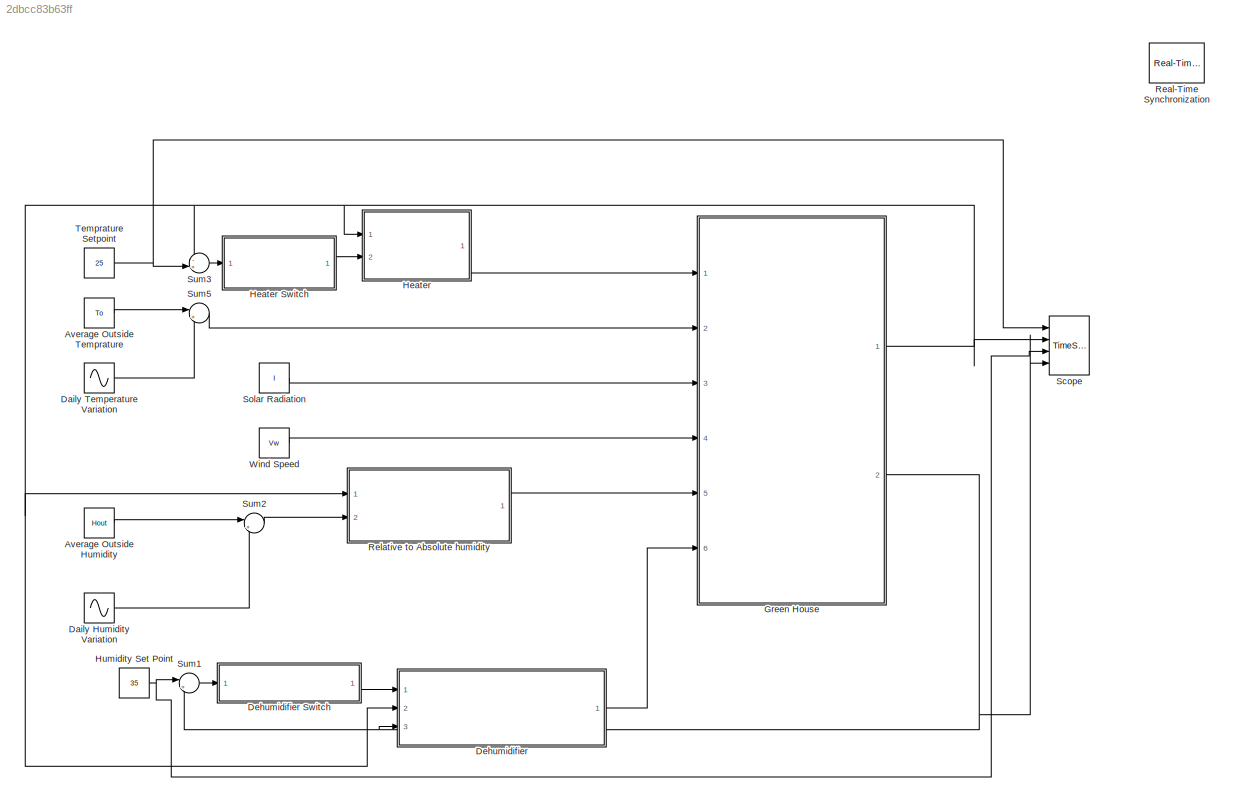
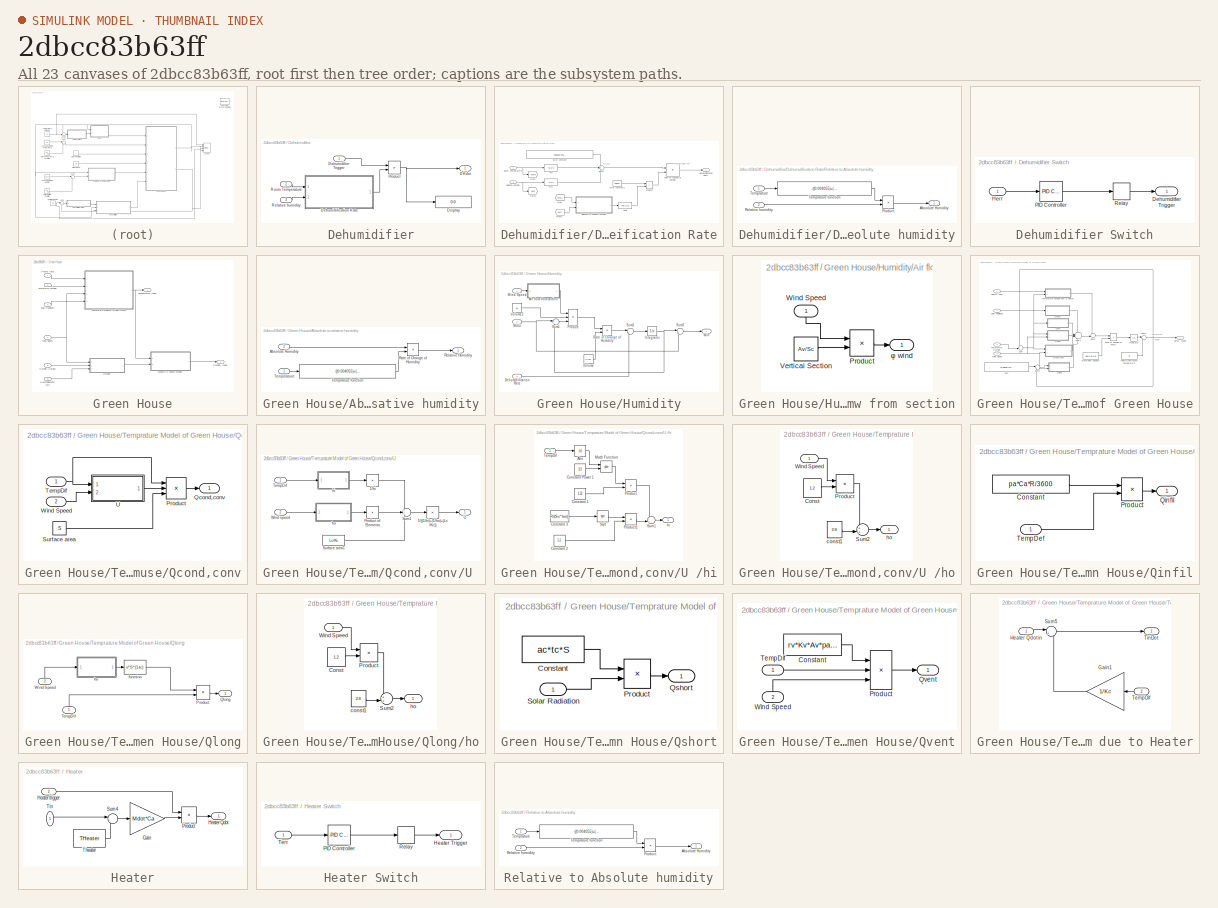
[diagram: thumbnail index - all 23 canvases of the model, root first then tree order]
MODEL slx_2dbcc83b63ff
KIND model
CONFIG AbsTol = auto
CONFIG FixedStep = auto
CONFIG MaxStep = auto
CONFIG MinStep = auto
CONFIG PreLoadFcn = %Density of interior air (Kg/m^3)\npa = 1.137;\n%Specific Heat of Air(J/Kg.K)\nCa = 1005;\n%Cover absorptivity of solar radiation\nac =0.1;\n%Cover transmittance \ntc = 0.85;\n%Length of GreenHouse(m)\nlen = 20;\n%Width of greenhouse(m)\nwid = 10;\n%Height of GreenHouse(m)[without Roof]\nheig = 3;\n%Roof angle from Horizontal(degrees)\nangle = 40;\n%Volume of greenhouse\nVol = len*wid*heig+0.5*wid*((width/2)*tan(a...<+263ch>
CONFIG RelTol = 1e-3
CONFIG SampleTimeConstraint = Unconstrained
CONFIG Solver = ode45
CONFIG SolverMode = Auto
CONFIG SolverName = ode45
CONFIG StartTime = 0.0
CONFIG StopTime = 10000
BLOCK [Constant] Average Outside Humidity
  Value = Hout
BLOCK [Constant] Average Outside Temprature 
  Value = To
BLOCK [Sin] Daily Humidity Variation
  Amplitude = 5
  Frequency = 0.005
  Phase = 1.5708
  Ports = [0, 1]
  SampleTime = 0
BLOCK [Sin] Daily Temperature Variation
  Amplitude = 5
  Ports = [0, 1]
  SampleTime = 0
BLOCK [SubSystem] Dehumidifier
  Ports = [3, 1]
  RequestExecContextInheritance = off
BLOCK [SubSystem] Dehumidifier Switch
  Ports = [1, 1]
  RequestExecContextInheritance = off
BLOCK [Outport] Dehumidifier Switch/Dehumidifier Trigger
  IconDisplay = Port number
BLOCK [Inport] Dehumidifier Switch/Herr
  IconDisplay = Port number
BLOCK [Reference] Dehumidifier Switch/PID Controller  REF=simulink/Continuous/PID Controller
  AntiWindupMode = none
  Controller = PID
  ControllerParametersSource = internal
  D = 1
  DGainOutDataTypeStr = Inherit: Inherit via internal rule
  DOutDataTypeStr = Inherit: Inherit via internal rule
  DOutMax = []
  DOutMin = []
  DParamDataTypeStr = Inherit: Inherit via internal rule
  DParamMax = []
  DParamMin = []
  DProdOutDataTypeStr = Inherit: Inherit via internal rule
  DifferentiatorICPrevScaledInput = 0
  DifferentiatorOutDataTypeStr = Inherit: Inherit via internal rule
  DifferentiatorOutMax = []
  DifferentiatorOutMin = []
  ExternalReset = none
  FilterContinuousStateAttributes = ''
  FilterMethod = Forward Euler
  FilterOutDataTypeStr = Inherit: Inherit via internal rule
  FilterOutMax = []
  FilterOutMin = []
  FilterRTWStateStorageClass = Auto
  FilterStateMustResolveToSignalObject = off
  Form = Parallel
  I = 10
  IGainOutDataTypeStr = Inherit: Inherit via internal rule
  IOutDataTypeStr = Inherit: Inherit via internal rule
  IOutMax = []
  IOutMin = []
  IParamDataTypeStr = Inherit: Inherit via internal rule
  IParamMax = []
  IParamMin = []
  IProdOutDataTypeStr = Inherit: Inherit via internal rule
  IgnoreLimit = off
  InitialConditionForFilter = 0
  InitialConditionForIntegrator = 0
  InitialConditionSource = internal
  IntegratorContinuousStateAttributes = ''
  IntegratorMethod = Forward Euler
  IntegratorOutDataTypeStr = Inherit: Inherit via internal rule
  IntegratorOutMax = []
  IntegratorOutMin = []
  IntegratorRTWStateStorageClass = Auto
  IntegratorStateMustResolveToSignalObject = off
  Kb = 1
  KbOutDataTypeStr = Inherit: Inherit via internal rule
  KbOutMax = []
  KbOutMin = []
  KbParamDataTypeStr = Inherit: Inherit via internal rule
  KbParamMax = []
  KbParamMin = []
  Kt = 1
  KtOutDataTypeStr = Inherit: Inherit via internal rule
  KtOutMax = []
  KtOutMin = []
  KtParamDataTypeStr = Inherit: Inherit via internal rule
  KtParamMax = []
  KtParamMin = []
  LimitOutput = off
  LinearizeAsGain = on
  LockScale = off
  LowerSaturationLimit = -inf
  N = 1
  NGainOutDataTypeStr = Inherit: Inherit via internal rule
  NOutDataTypeStr = Inherit: Inherit via internal rule
  NOutMax = []
  NOutMin = []
  NParamDataTypeStr = Inherit: Inherit via internal rule
  NParamMax = []
  NParamMin = []
  NProdOutDataTypeStr = Inherit: Inherit via internal rule
  P = 5000
  PGainOutDataTypeStr = Inherit: Inherit via internal rule
  POutDataTypeStr = Inherit: Inherit via internal rule
  POutMax = []
  POutMin = []
  PParamDataTypeStr = Inherit: Inherit via internal rule
  PParamMax = []
  PParamMin = []
  PProdOutDataTypeStr = Inherit: Inherit via internal rule
  Ports = [1, 1]
  RndMeth = Floor
  SampleTime = -1
  SaturateOnIntegerOverflow = off
  SaturationOutDataTypeStr = Inherit: Same as input
  SaturationOutMax = []
  SaturationOutMin = []
  SourceBlock = simulink/Continuous/PID Controller
  SourceType = PID 1dof
  SumAccumDataTypeStr = Inherit: Inherit via internal rule
  SumDAccumDataTypeStr = Inherit: Inherit via internal rule
  SumDOutDataTypeStr = Inherit: Inherit via internal rule
  SumDOutMax = []
  SumDOutMin = []
  SumI1AccumDataTypeStr = Inherit: Inherit via internal rule
  SumI1OutDataTypeStr = Inherit: Inherit via internal rule
  SumI1OutMax = []
  SumI1OutMin = []
  SumI2AccumDataTypeStr = Inherit: Inherit via internal rule
  SumI2OutDataTypeStr = Inherit: Inherit via internal rule
  SumI2OutMax = []
  SumI2OutMin = []
  SumI3AccumDataTypeStr = Inherit: Inherit via internal rule
  SumI3OutDataTypeStr = Inherit: Inherit via internal rule
  SumI3OutMax = []
  SumI3OutMin = []
  SumOutDataTypeStr = Inherit: Inherit via internal rule
  SumOutMax = []
  SumOutMin = []
  TimeDomain = Continuous-time
  TrackingMode = off
  UpperSaturationLimit = inf
  UseFilter = on
  ZeroCross = on
BLOCK [Relay] Dehumidifier Switch/Relay
  InputProcessing = Elements as channels (sample based)
  OffSwitchValue = 1
  OnSwitchValue = 1
  ZeroCross = off
BLOCK [Outport] Dehumidifier/DHdot
  IconDisplay = Port number
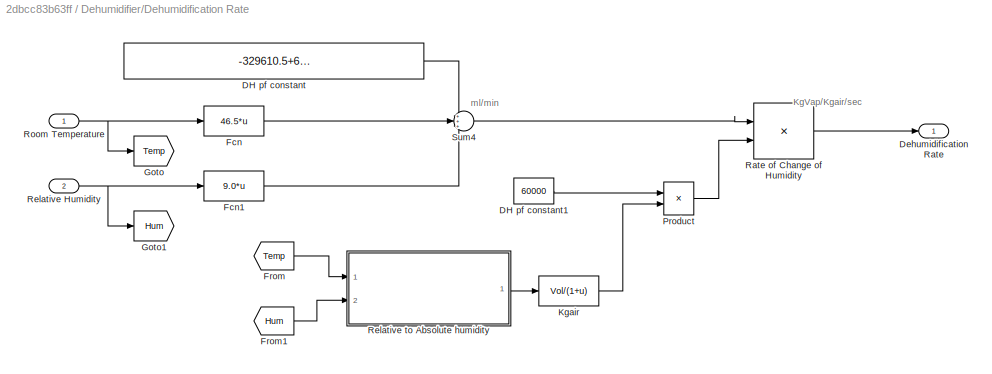
BLOCK [SubSystem] Dehumidifier/Dehumidification Rate
  Ports = [2, 1]
  RequestExecContextInheritance = off
BLOCK [Constant] Dehumidifier/Dehumidification Rate/DH pf constant
  Value = -329610.5+6.2*mairdot+31.7*Twi+325406.7*mwaterdot+0.3*I
BLOCK [Constant] Dehumidifier/Dehumidification Rate/DH pf constant1
  Value = 60000
BLOCK [Outport] Dehumidifier/Dehumidification Rate/Dehumidification Rate
  IconDisplay = Port number
BLOCK [Fcn] Dehumidifier/Dehumidification Rate/Fcn
  Expr = 46.5*u
BLOCK [Fcn] Dehumidifier/Dehumidification Rate/Fcn1
  Expr = 9.0*u
BLOCK [From] Dehumidifier/Dehumidification Rate/From
  GotoTag = Temp
BLOCK [From] Dehumidifier/Dehumidification Rate/From1
  GotoTag = Hum
BLOCK [Goto] Dehumidifier/Dehumidification Rate/Goto
  GotoTag = Temp
BLOCK [Goto] Dehumidifier/Dehumidification Rate/Goto1
  GotoTag = Hum
BLOCK [Fcn] Dehumidifier/Dehumidification Rate/Kgair
  Expr = Vol/(1+u)
BLOCK [Product] Dehumidifier/Dehumidification Rate/Product
  InputSameDT = off
  OutDataTypeStr = Inherit: Inherit via internal rule
  Ports = [2, 1]
  RndMeth = Floor
  SaturateOnIntegerOverflow = off
BLOCK [Product] Dehumidifier/Dehumidification Rate/Rate of Change of Humidity
  InputSameDT = off
  Inputs = */
  OutDataTypeStr = Inherit: Inherit via internal rule
  Ports = [2, 1]
  RndMeth = Floor
  SaturateOnIntegerOverflow = off
BLOCK [Inport] Dehumidifier/Dehumidification Rate/Relative Humidity
  IconDisplay = Port number
  Port = 2
BLOCK [SubSystem] Dehumidifier/Dehumidification Rate/Relative to Absolute humidity
  Ports = [2, 1]
  RequestExecContextInheritance = off
BLOCK [Outport] Dehumidifier/Dehumidification Rate/Relative to Absolute humidity/Absolute Humidity
  IconDisplay = Port number
BLOCK [Product] Dehumidifier/Dehumidification Rate/Relative to Absolute humidity/Product
  InputSameDT = off
  OutDataTypeStr = Inherit: Inherit via internal rule
  Ports = [2, 1]
  RndMeth = Floor
  SaturateOnIntegerOverflow = off
BLOCK [Inport] Dehumidifier/Dehumidification Rate/Relative to Absolute humidity/Relative humidity
  IconDisplay = Port number
  Port = 2
BLOCK [Inport] Dehumidifier/Dehumidification Rate/Relative to Absolute humidity/Temprature
  IconDisplay = Port number
BLOCK [Fcn] Dehumidifier/Dehumidification Rate/Relative to Absolute humidity/Temprature function
  Expr = ((0.004055)+(0.0001152*u)+0.00002167*u^2)/100
BLOCK [Inport] Dehumidifier/Dehumidification Rate/Room Temperature
  IconDisplay = Port number
BLOCK [Sum] Dehumidifier/Dehumidification Rate/Sum4
  IconShape = round
  InputSameDT = off
  Inputs = +++
  OutDataTypeStr = Inherit: Inherit via internal rule
  Ports = [3, 1]
  SaturateOnIntegerOverflow = off
BLOCK [Inport] Dehumidifier/Dehumidifier Trigger
  IconDisplay = Port number
BLOCK [Display] Dehumidifier/Display
  Decimation = 1
  Ports = [1]
BLOCK [Product] Dehumidifier/Product
  InputSameDT = off
  OutDataTypeStr = Inherit: Inherit via internal rule
  Ports = [2, 1]
  RndMeth = Floor
  SaturateOnIntegerOverflow = off
BLOCK [Inport] Dehumidifier/Relative humidity
  IconDisplay = Port number
  Port = 3
BLOCK [Inport] Dehumidifier/Room Temperature
  IconDisplay = Port number
  Port = 2
BLOCK [SubSystem] Green House
  Ports = [6, 2]
  RequestExecContextInheritance = off
BLOCK [SubSystem] Green House/Absolute to relative humidity
  Ports = [2, 1]
  RequestExecContextInheritance = off
BLOCK [Inport] Green House/Absolute to relative humidity/Absolute Humidity
  IconDisplay = Port number
  Port = 2
BLOCK [Product] Green House/Absolute to relative humidity/Rate of Change of Humidity
  InputSameDT = off
  Inputs = */
  OutDataTypeStr = Inherit: Inherit via internal rule
  Ports = [2, 1]
  RndMeth = Floor
  SaturateOnIntegerOverflow = off
BLOCK [Outport] Green House/Absolute to relative humidity/Relative Humidity
  IconDisplay = Port number
BLOCK [Inport] Green House/Absolute to relative humidity/Temperature
  IconDisplay = Port number
BLOCK [Fcn] Green House/Absolute to relative humidity/Temprature function
  Expr = ((0.004055)+(0.0001152*u)+0.00002167*u^2)/100
BLOCK [Inport] Green House/Dehumidification rate
  IconDisplay = Port number
  Port = 6
BLOCK [Inport] Green House/Heater Input
  IconDisplay = Port number
BLOCK [SubSystem] Green House/Humidity
  Ports = [3, 1]
  RequestExecContextInheritance = off
BLOCK [Outport] Green House/Humidity Inside
  IconDisplay = Port number
  Port = 2
BLOCK [Inport] Green House/Humidity Outside
  IconDisplay = Port number
  Port = 5
BLOCK [SubSystem] Green House/Humidity/Air flow from section
  Ports = [1, 1]
  RequestExecContextInheritance = off
BLOCK [Product] Green House/Humidity/Air flow from section/Product
  InputSameDT = off
  OutDataTypeStr = Inherit: Inherit via internal rule
  Ports = [2, 1]
  RndMeth = Floor
  SaturateOnIntegerOverflow = off
BLOCK [Constant] Green House/Humidity/Air flow from section/Vertical Section
  Value = Av/Sc
BLOCK [Inport] Green House/Humidity/Air flow from section/Wind Speed
  IconDisplay = Port number
BLOCK [Outport] Green House/Humidity/Air flow from section/φ wind
  IconDisplay = Port number
BLOCK [Inport] Green House/Humidity/Dehumidificarion Rate
  IconDisplay = Port number
  Port = 3
BLOCK [Integrator] Green House/Humidity/Integrator
  Ports = [1, 1]
BLOCK [Product] Green House/Humidity/Product
  InputSameDT = off
  Inputs = 3
  OutDataTypeStr = Inherit: Inherit via internal rule
  Ports = [3, 1]
  RndMeth = Floor
  SaturateOnIntegerOverflow = off
BLOCK [Product] Green House/Humidity/Rate of Change of Humidity
  InputSameDT = off
  Inputs = */
  OutDataTypeStr = Inherit: Inherit via internal rule
  Ports = [2, 1]
  RndMeth = Floor
  SaturateOnIntegerOverflow = off
BLOCK [Sum] Green House/Humidity/Sum1
  IconShape = round
  InputSameDT = off
  Inputs = |-+
  OutDataTypeStr = Inherit: Inherit via internal rule
  Ports = [2, 1]
  SaturateOnIntegerOverflow = off
BLOCK [Sum] Green House/Humidity/Sum2
  IconShape = round
  InputSameDT = off
  Inputs = |+-
  OutDataTypeStr = Inherit: Inherit via internal rule
  Ports = [2, 1]
  SaturateOnIntegerOverflow = off
BLOCK [Sum] Green House/Humidity/Sum3
  IconShape = round
  InputSameDT = off
  Inputs = |++
  OutDataTypeStr = Inherit: Inherit via internal rule
  Ports = [2, 1]
  SaturateOnIntegerOverflow = off
BLOCK [Constant] Green House/Humidity/Volume
  Value = H*pa
BLOCK [Constant] Green House/Humidity/Volume2
  Value = pa
BLOCK [Outport] Green House/Humidity/Win
  IconDisplay = Port number
BLOCK [Inport] Green House/Humidity/Wind Speed
  IconDisplay = Port number
BLOCK [Inport] Green House/Humidity/Wout
  IconDisplay = Port number
  Port = 2
BLOCK [Inport] Green House/Solar Radiation
  IconDisplay = Port number
  Port = 3
BLOCK [Outport] Green House/Temperature Inside
  IconDisplay = Signal name
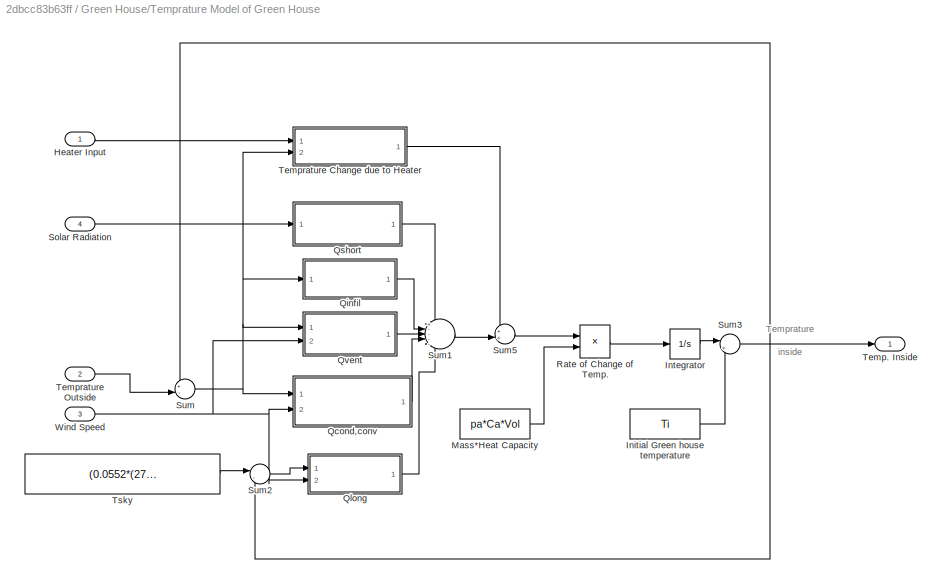
BLOCK [SubSystem] Green House/Temprature Model of Green House
  Ports = [4, 1]
  RequestExecContextInheritance = off
BLOCK [Inport] Green House/Temprature Model of Green House/Heater Input
  IconDisplay = Port number
BLOCK [Constant] Green House/Temprature Model of Green House/Initial Green house temperature
  Value = Ti
BLOCK [Integrator] Green House/Temprature Model of Green House/Integrator
  Ports = [1, 1]
BLOCK [Constant] Green House/Temprature Model of Green House/Mass*Heat Capacity
  Value = pa*Ca*Vol
BLOCK [SubSystem] Green House/Temprature Model of Green House/Qcond,conv
  Ports = [2, 1]
  RequestExecContextInheritance = off
BLOCK [Product] Green House/Temprature Model of Green House/Qcond,conv/Product
  InputSameDT = off
  Inputs = 3
  OutDataTypeStr = Inherit: Inherit via internal rule
  Ports = [3, 1]
  RndMeth = Floor
  SaturateOnIntegerOverflow = off
BLOCK [Outport] Green House/Temprature Model of Green House/Qcond,conv/Qcond,conv
  IconDisplay = Port number
BLOCK [Constant] Green House/Temprature Model of Green House/Qcond,conv/Surface area
  Value = S
BLOCK [Inport] Green House/Temprature Model of Green House/Qcond,conv/TempDif 
  IconDisplay = Port number
BLOCK [SubSystem] Green House/Temprature Model of Green House/Qcond,conv/U 
  Ports = [2, 1]
  RequestExecContextInheritance = off
BLOCK [Product] Green House/Temprature Model of Green House/Qcond,conv/U /1//((1//hi)+(1//ho)+(Lc//Kc))
  InputSameDT = off
  Inputs = /
  OutDataTypeStr = Inherit: Inherit via internal rule
  Ports = [1, 1]
  RndMeth = Floor
  SaturateOnIntegerOverflow = off
BLOCK [Product] Green House/Temprature Model of Green House/Qcond,conv/U /1//hi
  InputSameDT = off
  Inputs = /
  OutDataTypeStr = Inherit: Inherit via internal rule
  Ports = [1, 1]
  RndMeth = Floor
  SaturateOnIntegerOverflow = off
BLOCK [Product] Green House/Temprature Model of Green House/Qcond,conv/U /Product of Elements
  InputSameDT = off
  Inputs = /
  OutDataTypeStr = Inherit: Inherit via internal rule
  Ports = [1, 1]
  RndMeth = Floor
  SaturateOnIntegerOverflow = off
BLOCK [Sum] Green House/Temprature Model of Green House/Qcond,conv/U /Sum1
  IconShape = round
  InputSameDT = off
  Inputs = +++
  OutDataTypeStr = Inherit: Inherit via internal rule
  Ports = [3, 1]
  SaturateOnIntegerOverflow = off
BLOCK [Constant] Green House/Temprature Model of Green House/Qcond,conv/U /Surface area1
  Value = Lc/Kc
BLOCK [Inport] Green House/Temprature Model of Green House/Qcond,conv/U /TempDif 
  IconDisplay = Port number
BLOCK [Outport] Green House/Temprature Model of Green House/Qcond,conv/U /U 
  IconDisplay = Port number
BLOCK [Inport] Green House/Temprature Model of Green House/Qcond,conv/U /Wind speed
  IconDisplay = Port number
  Port = 2
BLOCK [SubSystem] Green House/Temprature Model of Green House/Qcond,conv/U /hi
  Ports = [1, 1]
  RequestExecContextInheritance = off
BLOCK [Abs] Green House/Temprature Model of Green House/Qcond,conv/U /hi/Abs
  SaturateOnIntegerOverflow = off
BLOCK [Constant] Green House/Temprature Model of Green House/Qcond,conv/U /hi/Constant 1
  Value = 1.52
BLOCK [Constant] Green House/Temprature Model of Green House/Qcond,conv/U /hi/Constant 2
  Value = 5.2
BLOCK [Constant] Green House/Temprature Model of Green House/Qcond,conv/U /hi/Constant 3
  Value = R/(Sc*len)
BLOCK [Constant] Green House/Temprature Model of Green House/Qcond,conv/U /hi/Constant Power 1
  Value = 1/3
BLOCK [Math] Green House/Temprature Model of Green House/Qcond,conv/U /hi/Math Function
  Operator = pow
  Ports = [2, 1]
BLOCK [Product] Green House/Temprature Model of Green House/Qcond,conv/U /hi/Product
  InputSameDT = off
  OutDataTypeStr = Inherit: Inherit via internal rule
  Ports = [2, 1]
  RndMeth = Floor
  SaturateOnIntegerOverflow = off
BLOCK [Product] Green House/Temprature Model of Green House/Qcond,conv/U /hi/Product1
  InputSameDT = off
  OutDataTypeStr = Inherit: Inherit via internal rule
  Ports = [2, 1]
  RndMeth = Floor
  SaturateOnIntegerOverflow = off
BLOCK [Sqrt] Green House/Temprature Model of Green House/Qcond,conv/U /hi/Sqrt
BLOCK [Sum] Green House/Temprature Model of Green House/Qcond,conv/U /hi/Sum1
  IconShape = round
  InputSameDT = off
  Inputs = ++|
  OutDataTypeStr = Inherit: Inherit via internal rule
  Ports = [2, 1]
  SaturateOnIntegerOverflow = off
BLOCK [Inport] Green House/Temprature Model of Green House/Qcond,conv/U /hi/TempDif 
  IconDisplay = Port number
BLOCK [Outport] Green House/Temprature Model of Green House/Qcond,conv/U /hi/hi 
  IconDisplay = Port number
BLOCK [SubSystem] Green House/Temprature Model of Green House/Qcond,conv/U /ho
  Ports = [1, 1]
  RequestExecContextInheritance = off
BLOCK [Constant] Green House/Temprature Model of Green House/Qcond,conv/U /ho/Const
  Value = 1.2
BLOCK [Product] Green House/Temprature Model of Green House/Qcond,conv/U /ho/Product
  InputSameDT = off
  OutDataTypeStr = Inherit: Inherit via internal rule
  Ports = [2, 1]
  RndMeth = Floor
  SaturateOnIntegerOverflow = off
BLOCK [Sum] Green House/Temprature Model of Green House/Qcond,conv/U /ho/Sum2
  IconShape = round
  InputSameDT = off
  Inputs = ++|
  OutDataTypeStr = Inherit: Inherit via internal rule
  Ports = [2, 1]
  SaturateOnIntegerOverflow = off
BLOCK [Inport] Green House/Temprature Model of Green House/Qcond,conv/U /ho/Wind Speed
  IconDisplay = Port number
BLOCK [Constant] Green House/Temprature Model of Green House/Qcond,conv/U /ho/const1
  Value = 2.8
BLOCK [Outport] Green House/Temprature Model of Green House/Qcond,conv/U /ho/ho
  IconDisplay = Port number
BLOCK [Inport] Green House/Temprature Model of Green House/Qcond,conv/Wind Speed
  IconDisplay = Port number
  Port = 2
BLOCK [SubSystem] Green House/Temprature Model of Green House/Qinfil
  Ports = [1, 1]
  RequestExecContextInheritance = off
BLOCK [Constant] Green House/Temprature Model of Green House/Qinfil/Constant 
  Value = pa*Ca*R/3600
BLOCK [Product] Green House/Temprature Model of Green House/Qinfil/Product
  InputSameDT = off
  OutDataTypeStr = Inherit: Inherit via internal rule
  Ports = [2, 1]
  RndMeth = Floor
  SaturateOnIntegerOverflow = off
BLOCK [Outport] Green House/Temprature Model of Green House/Qinfil/Qinfil 
  IconDisplay = Port number
BLOCK [Inport] Green House/Temprature Model of Green House/Qinfil/TempDef 
  IconDisplay = Port number
BLOCK [SubSystem] Green House/Temprature Model of Green House/Qlong
  Ports = [2, 1]
  RequestExecContextInheritance = off
BLOCK [Fcn] Green House/Temprature Model of Green House/Qlong/ function
  Expr = u*S*(1-tc)
BLOCK [Product] Green House/Temprature Model of Green House/Qlong/Product
  InputSameDT = off
  OutDataTypeStr = Inherit: Inherit via internal rule
  Ports = [2, 1]
  RndMeth = Floor
  SaturateOnIntegerOverflow = off
BLOCK [Outport] Green House/Temprature Model of Green House/Qlong/Qlong
  IconDisplay = Port number
BLOCK [Inport] Green House/Temprature Model of Green House/Qlong/TempDif
  IconDisplay = Port number
BLOCK [Inport] Green House/Temprature Model of Green House/Qlong/Wind Speed
  IconDisplay = Port number
  Port = 2
BLOCK [SubSystem] Green House/Temprature Model of Green House/Qlong/ho
  Ports = [1, 1]
  RequestExecContextInheritance = off
BLOCK [Constant] Green House/Temprature Model of Green House/Qlong/ho/Const
  Value = 1.2
BLOCK [Product] Green House/Temprature Model of Green House/Qlong/ho/Product
  InputSameDT = off
  OutDataTypeStr = Inherit: Inherit via internal rule
  Ports = [2, 1]
  RndMeth = Floor
  SaturateOnIntegerOverflow = off
BLOCK [Sum] Green House/Temprature Model of Green House/Qlong/ho/Sum2
  IconShape = round
  InputSameDT = off
  Inputs = ++|
  OutDataTypeStr = Inherit: Inherit via internal rule
  Ports = [2, 1]
  SaturateOnIntegerOverflow = off
BLOCK [Inport] Green House/Temprature Model of Green House/Qlong/ho/Wind Speed
  IconDisplay = Port number
BLOCK [Constant] Green House/Temprature Model of Green House/Qlong/ho/const1
  Value = 2.8
BLOCK [Outport] Green House/Temprature Model of Green House/Qlong/ho/ho
  IconDisplay = Port number
BLOCK [SubSystem] Green House/Temprature Model of Green House/Qshort
  Ports = [1, 1]
  RequestExecContextInheritance = off
BLOCK [Constant] Green House/Temprature Model of Green House/Qshort/Constant
  Value = ac*tc*S
BLOCK [Product] Green House/Temprature Model of Green House/Qshort/Product
  InputSameDT = off
  OutDataTypeStr = Inherit: Inherit via internal rule
  Ports = [2, 1]
  RndMeth = Floor
  SaturateOnIntegerOverflow = off
BLOCK [Outport] Green House/Temprature Model of Green House/Qshort/Qshort
  IconDisplay = Port number
BLOCK [Inport] Green House/Temprature Model of Green House/Qshort/Solar Radiation
  IconDisplay = Port number
BLOCK [SubSystem] Green House/Temprature Model of Green House/Qvent
  Ports = [2, 1]
  RequestExecContextInheritance = off
BLOCK [Constant] Green House/Temprature Model of Green House/Qvent/Constant
  Value = rv*Kv*Av*pa*Ca
BLOCK [Product] Green House/Temprature Model of Green House/Qvent/Product
  InputSameDT = off
  Inputs = 3
  OutDataTypeStr = Inherit: Inherit via internal rule
  Ports = [3, 1]
  RndMeth = Floor
  SaturateOnIntegerOverflow = off
BLOCK [Outport] Green House/Temprature Model of Green House/Qvent/Qvent
  IconDisplay = Port number
BLOCK [Inport] Green House/Temprature Model of Green House/Qvent/TempDif
  IconDisplay = Port number
BLOCK [Inport] Green House/Temprature Model of Green House/Qvent/Wind Speed
  IconDisplay = Port number
  Port = 2
BLOCK [Product] Green House/Temprature Model of Green House/Rate of Change of Temp.
  InputSameDT = off
  Inputs = */
  OutDataTypeStr = Inherit: Inherit via internal rule
  Ports = [2, 1]
  RndMeth = Floor
  SaturateOnIntegerOverflow = off
BLOCK [Inport] Green House/Temprature Model of Green House/Solar Radiation
  IconDisplay = Port number
  Port = 4
BLOCK [Sum] Green House/Temprature Model of Green House/Sum
  IconShape = round
  InputSameDT = off
  Inputs = +-|
  OutDataTypeStr = Inherit: Inherit via internal rule
  Ports = [2, 1]
  SaturateOnIntegerOverflow = off
BLOCK [Sum] Green House/Temprature Model of Green House/Sum1
  IconShape = round
  InputSameDT = off
  Inputs = +----
  OutDataTypeStr = Inherit: Inherit via internal rule
  Ports = [5, 1]
  SaturateOnIntegerOverflow = off
BLOCK [Sum] Green House/Temprature Model of Green House/Sum2
  IconShape = round
  InputSameDT = off
  Inputs = |-+
  OutDataTypeStr = Inherit: Inherit via internal rule
  Ports = [2, 1]
  SaturateOnIntegerOverflow = off
BLOCK [Sum] Green House/Temprature Model of Green House/Sum3
  IconShape = round
  InputSameDT = off
  Inputs = |++
  OutDataTypeStr = Inherit: Inherit via internal rule
  Ports = [2, 1]
  SaturateOnIntegerOverflow = off
BLOCK [Sum] Green House/Temprature Model of Green House/Sum5
  IconShape = round
  InputSameDT = off
  Inputs = ++|
  OutDataTypeStr = Inherit: Inherit via internal rule
  Ports = [2, 1]
  SaturateOnIntegerOverflow = off
BLOCK [Outport] Green House/Temprature Model of Green House/Temp. Inside
  IconDisplay = Port number
BLOCK [SubSystem] Green House/Temprature Model of Green House/Temprature Change due to Heater
  Ports = [2, 1]
  RequestExecContextInheritance = off
BLOCK [Gain] Green House/Temprature Model of Green House/Temprature Change due to Heater/Gain1
  Gain = 1/Kc
  OutDataTypeStr = Inherit: Inherit via internal rule
  ParamDataTypeStr = Inherit: Inherit via internal rule
  SaturateOnIntegerOverflow = off
BLOCK [Inport] Green House/Temprature Model of Green House/Temprature Change due to Heater/Heater Qdot in
  IconDisplay = Port number
BLOCK [Sum] Green House/Temprature Model of Green House/Temprature Change due to Heater/Sum5
  IconShape = round
  InputSameDT = off
  Inputs = |+-
  OutDataTypeStr = Inherit: Inherit via internal rule
  Ports = [2, 1]
  SaturateOnIntegerOverflow = off
BLOCK [Inport] Green House/Temprature Model of Green House/Temprature Change due to Heater/TempDif
  IconDisplay = Port number
  Port = 2
BLOCK [Outport] Green House/Temprature Model of Green House/Temprature Change due to Heater/TinDot
  IconDisplay = Port number
BLOCK [Inport] Green House/Temprature Model of Green House/Temprature Outside
  IconDisplay = Port number
  Port = 2
BLOCK [Constant] Green House/Temprature Model of Green House/Tsky
  Value = (0.0552*(273.15+To)^1.5)-273.15
BLOCK [Inport] Green House/Temprature Model of Green House/Wind Speed
  IconDisplay = Port number
  Port = 3
BLOCK [Inport] Green House/Temprature outside
  IconDisplay = Port number
  Port = 2
BLOCK [Inport] Green House/Wind Speed
  IconDisplay = Port number
  Port = 4
BLOCK [SubSystem] Heater
  Ports = [2, 1]
  RequestExecContextInheritance = off
BLOCK [SubSystem] Heater Switch
  Ports = [1, 1]
  RequestExecContextInheritance = off
BLOCK [Outport] Heater Switch/Heater Trigger
  IconDisplay = Port number
BLOCK [Reference] Heater Switch/PID Controller  REF=simulink/Continuous/PID Controller
  AntiWindupMode = none
  Controller = PID
  ControllerParametersSource = internal
  D = 1000
  DGainOutDataTypeStr = Inherit: Inherit via internal rule
  DOutDataTypeStr = Inherit: Inherit via internal rule
  DOutMax = []
  DOutMin = []
  DParamDataTypeStr = Inherit: Inherit via internal rule
  DParamMax = []
  DParamMin = []
  DProdOutDataTypeStr = Inherit: Inherit via internal rule
  DifferentiatorICPrevScaledInput = 0
  DifferentiatorOutDataTypeStr = Inherit: Inherit via internal rule
  DifferentiatorOutMax = []
  DifferentiatorOutMin = []
  ExternalReset = none
  FilterContinuousStateAttributes = ''
  FilterMethod = Forward Euler
  FilterOutDataTypeStr = Inherit: Inherit via internal rule
  FilterOutMax = []
  FilterOutMin = []
  FilterRTWStateStorageClass = Auto
  FilterStateMustResolveToSignalObject = off
  Form = Parallel
  I = 2
  IGainOutDataTypeStr = Inherit: Inherit via internal rule
  IOutDataTypeStr = Inherit: Inherit via internal rule
  IOutMax = []
  IOutMin = []
  IParamDataTypeStr = Inherit: Inherit via internal rule
  IParamMax = []
  IParamMin = []
  IProdOutDataTypeStr = Inherit: Inherit via internal rule
  IgnoreLimit = off
  InitialConditionForFilter = 0
  InitialConditionForIntegrator = 0
  InitialConditionSource = internal
  IntegratorContinuousStateAttributes = ''
  IntegratorMethod = Forward Euler
  IntegratorOutDataTypeStr = Inherit: Inherit via internal rule
  IntegratorOutMax = []
  IntegratorOutMin = []
  IntegratorRTWStateStorageClass = Auto
  IntegratorStateMustResolveToSignalObject = off
  Kb = 1
  KbOutDataTypeStr = Inherit: Inherit via internal rule
  KbOutMax = []
  KbOutMin = []
  KbParamDataTypeStr = Inherit: Inherit via internal rule
  KbParamMax = []
  KbParamMin = []
  Kt = 1
  KtOutDataTypeStr = Inherit: Inherit via internal rule
  KtOutMax = []
  KtOutMin = []
  KtParamDataTypeStr = Inherit: Inherit via internal rule
  KtParamMax = []
  KtParamMin = []
  LimitOutput = off
  LinearizeAsGain = on
  LockScale = off
  LowerSaturationLimit = -inf
  N = 1
  NGainOutDataTypeStr = Inherit: Inherit via internal rule
  NOutDataTypeStr = Inherit: Inherit via internal rule
  NOutMax = []
  NOutMin = []
  NParamDataTypeStr = Inherit: Inherit via internal rule
  NParamMax = []
  NParamMin = []
  NProdOutDataTypeStr = Inherit: Inherit via internal rule
  P = 20
  PGainOutDataTypeStr = Inherit: Inherit via internal rule
  POutDataTypeStr = Inherit: Inherit via internal rule
  POutMax = []
  POutMin = []
  PParamDataTypeStr = Inherit: Inherit via internal rule
  PParamMax = []
  PParamMin = []
  PProdOutDataTypeStr = Inherit: Inherit via internal rule
  Ports = [1, 1]
  RndMeth = Floor
  SampleTime = -1
  SaturateOnIntegerOverflow = off
  SaturationOutDataTypeStr = Inherit: Same as input
  SaturationOutMax = []
  SaturationOutMin = []
  SourceBlock = simulink/Continuous/PID Controller
  SourceType = PID 1dof
  SumAccumDataTypeStr = Inherit: Inherit via internal rule
  SumDAccumDataTypeStr = Inherit: Inherit via internal rule
  SumDOutDataTypeStr = Inherit: Inherit via internal rule
  SumDOutMax = []
  SumDOutMin = []
  SumI1AccumDataTypeStr = Inherit: Inherit via internal rule
  SumI1OutDataTypeStr = Inherit: Inherit via internal rule
  SumI1OutMax = []
  SumI1OutMin = []
  SumI2AccumDataTypeStr = Inherit: Inherit via internal rule
  SumI2OutDataTypeStr = Inherit: Inherit via internal rule
  SumI2OutMax = []
  SumI2OutMin = []
  SumI3AccumDataTypeStr = Inherit: Inherit via internal rule
  SumI3OutDataTypeStr = Inherit: Inherit via internal rule
  SumI3OutMax = []
  SumI3OutMin = []
  SumOutDataTypeStr = Inherit: Inherit via internal rule
  SumOutMax = []
  SumOutMin = []
  TimeDomain = Continuous-time
  TrackingMode = off
  UpperSaturationLimit = inf
  UseFilter = on
  ZeroCross = on
BLOCK [Relay] Heater Switch/Relay
  InputProcessing = Elements as channels (sample based)
  OffSwitchValue = -0.1
  OnSwitchValue = 0
  ZeroCross = off
BLOCK [Inport] Heater Switch/Terr
  IconDisplay = Port number
BLOCK [Gain] Heater/Gain
  Gain = Mdot*Ca
  OutDataTypeStr = Inherit: Inherit via internal rule
  ParamDataTypeStr = Inherit: Inherit via internal rule
  SaturateOnIntegerOverflow = off
BLOCK [Outport] Heater/Heater Qdot
  IconDisplay = Port number
BLOCK [Inport] Heater/Heater trigger
  IconDisplay = Port number
  Port = 2
BLOCK [Product] Heater/Product
  InputSameDT = off
  OutDataTypeStr = Inherit: Inherit via internal rule
  Ports = [2, 1]
  RndMeth = Floor
  SaturateOnIntegerOverflow = off
BLOCK [Sum] Heater/Sum4
  IconShape = round
  InputSameDT = off
  Inputs = |-+
  OutDataTypeStr = Inherit: Inherit via internal rule
  Ports = [2, 1]
  SaturateOnIntegerOverflow = off
BLOCK [Constant] Heater/Theater
  Value = THeater
BLOCK [Inport] Heater/Tin
  IconDisplay = Port number
BLOCK [Constant] Humidity Set Point
  Value = 35
BLOCK [Reference] Real-Time Synchronization  REF=sldrtlib/Real-Time
Synchronization
  MaxMissedTicks = 10
  Ports = []
  SampleTime = 0.01
  ShowMissedTicks = off
  SourceBlock = sldrtlib/Real-Time\nSynchronization
  SourceType = Simulink Desktop Real-Time Synchronization
  YieldWhenWaiting = off
BLOCK [SubSystem] Relative to Absolute humidity
  Ports = [2, 1]
  RequestExecContextInheritance = off
BLOCK [Outport] Relative to Absolute humidity/Absolute Humidity
  IconDisplay = Port number
BLOCK [Product] Relative to Absolute humidity/Product
  InputSameDT = off
  OutDataTypeStr = Inherit: Inherit via internal rule
  Ports = [2, 1]
  RndMeth = Floor
  SaturateOnIntegerOverflow = off
BLOCK [Inport] Relative to Absolute humidity/Relative humidity
  IconDisplay = Port number
  Port = 2
BLOCK [Inport] Relative to Absolute humidity/Temprature
  IconDisplay = Port number
BLOCK [Fcn] Relative to Absolute humidity/Temprature function
  Expr = ((0.004055)+(0.0001152*u)+0.00002167*u^2)/100
BLOCK [TimeScope] Scope
  NumInputPorts = 4
  Ports = [4]
  ScopeSpecificationString = Simulink.scopes.TimeScopeBlockCfg('CurrentConfiguration', extmgr.ConfigurationSet(extmgr.Configuration('Core','General UI',true),extmgr.Configuration('Core','Source UI',true),extmgr.Configuration('Sources','WiredSimulink',true,'DataLoggingDecimation','1','DataLoggingDecimateData',true,'DataLoggingSaveFormat','Array'),extmgr.Configuration('Visuals','Time Domain',true,'SerializedDisplays',{struct('M...<+1719ch>
BLOCK [Constant] Solar Radiation
  Value = I
BLOCK [Sum] Sum1
  IconShape = round
  InputSameDT = off
  Inputs = |+-
  OutDataTypeStr = Inherit: Inherit via internal rule
  Ports = [2, 1]
  SaturateOnIntegerOverflow = off
BLOCK [Sum] Sum2
  IconShape = round
  InputSameDT = off
  Inputs = |++
  OutDataTypeStr = Inherit: Inherit via internal rule
  Ports = [2, 1]
  SaturateOnIntegerOverflow = off
BLOCK [Sum] Sum3
  IconShape = round
  InputSameDT = off
  Inputs = -+|
  OutDataTypeStr = Inherit: Inherit via internal rule
  Ports = [2, 1]
  SaturateOnIntegerOverflow = off
BLOCK [Sum] Sum5
  IconShape = round
  InputSameDT = off
  Inputs = |++
  OutDataTypeStr = Inherit: Inherit via internal rule
  Ports = [2, 1]
  SaturateOnIntegerOverflow = off
BLOCK [Constant] Temprature Setpoint
  Value = 25
BLOCK [Constant] Wind Speed
  Value = Vw
ANNOTATION Dehumidifier/Dehumidification Rate: ml/min
ANNOTATION Dehumidifier/Dehumidification Rate: KgVap/Kgair/sec
ANNOTATION Green House/Temprature Model of Green House: Temprature inside
LINE Average Outside Humidity:1 -> Sum2:1
LINE Average Outside Temprature :1 -> Sum5:1
LINE Daily Humidity Variation:1 -> Sum2:2
LINE Daily Temperature Variation:1 -> Sum5:2
LINE Dehumidifier Switch/Herr:1 -> Dehumidifier Switch/PID Controller:1
LINE Dehumidifier Switch/PID Controller:1 -> Dehumidifier Switch/Relay:1
LINE Dehumidifier Switch/Relay:1 -> Dehumidifier Switch/Dehumidifier Trigger:1
LINE Dehumidifier Switch:1 -> Dehumidifier:1
LINE Dehumidifier/Dehumidification Rate/DH pf constant1:1 -> Dehumidifier/Dehumidification Rate/Product:1
LINE Dehumidifier/Dehumidification Rate/DH pf constant:1 -> Dehumidifier/Dehumidification Rate/Sum4:1
LINE Dehumidifier/Dehumidification Rate/Fcn1:1 -> Dehumidifier/Dehumidification Rate/Sum4:3
LINE Dehumidifier/Dehumidification Rate/Fcn:1 -> Dehumidifier/Dehumidification Rate/Sum4:2
LINE Dehumidifier/Dehumidification Rate/From1:1 -> Dehumidifier/Dehumidification Rate/Relative to Absolute humidity:2
LINE Dehumidifier/Dehumidification Rate/From:1 -> Dehumidifier/Dehumidification Rate/Relative to Absolute humidity:1
LINE Dehumidifier/Dehumidification Rate/Kgair:1 -> Dehumidifier/Dehumidification Rate/Product:2
LINE Dehumidifier/Dehumidification Rate/Product:1 -> Dehumidifier/Dehumidification Rate/Rate of Change of Humidity:2
LINE Dehumidifier/Dehumidification Rate/Rate of Change of Humidity:1 -> Dehumidifier/Dehumidification Rate/Dehumidification Rate:1
NET Dehumidifier/Dehumidification Rate/Relative Humidity:1 -> Dehumidifier/Dehumidification Rate/Fcn1:1, Dehumidifier/Dehumidification Rate/Goto1:1
LINE Dehumidifier/Dehumidification Rate/Relative to Absolute humidity/Product:1 -> Dehumidifier/Dehumidification Rate/Relative to Absolute humidity/Absolute Humidity:1
LINE Dehumidifier/Dehumidification Rate/Relative to Absolute humidity/Relative humidity:1 -> Dehumidifier/Dehumidification Rate/Relative to Absolute humidity/Product:2
LINE Dehumidifier/Dehumidification Rate/Relative to Absolute humidity/Temprature function:1 -> Dehumidifier/Dehumidification Rate/Relative to Absolute humidity/Product:1
LINE Dehumidifier/Dehumidification Rate/Relative to Absolute humidity/Temprature:1 -> Dehumidifier/Dehumidification Rate/Relative to Absolute humidity/Temprature function:1
LINE Dehumidifier/Dehumidification Rate/Relative to Absolute humidity:1 -> Dehumidifier/Dehumidification Rate/Kgair:1
NET Dehumidifier/Dehumidification Rate/Room Temperature:1 -> Dehumidifier/Dehumidification Rate/Fcn:1, Dehumidifier/Dehumidification Rate/Goto:1
LINE Dehumidifier/Dehumidification Rate/Sum4:1 -> Dehumidifier/Dehumidification Rate/Rate of Change of Humidity:1
LINE Dehumidifier/Dehumidification Rate:1 -> Dehumidifier/Product:2
LINE Dehumidifier/Dehumidifier Trigger:1 -> Dehumidifier/Product:1
NET Dehumidifier/Product:1 -> Dehumidifier/DHdot:1, Dehumidifier/Display:1
LINE Dehumidifier/Relative humidity:1 -> Dehumidifier/Dehumidification Rate:2
LINE Dehumidifier/Room Temperature:1 -> Dehumidifier/Dehumidification Rate:1
LINE Dehumidifier:1 -> Green House:6
LINE Green House/Absolute to relative humidity/Absolute Humidity:1 -> Green House/Absolute to relative humidity/Rate of Change of Humidity:1
LINE Green House/Absolute to relative humidity/Rate of Change of Humidity:1 -> Green House/Absolute to relative humidity/Relative Humidity:1
LINE Green House/Absolute to relative humidity/Temperature:1 -> Green House/Absolute to relative humidity/Temprature function:1
LINE Green House/Absolute to relative humidity/Temprature function:1 -> Green House/Absolute to relative humidity/Rate of Change of Humidity:2
LINE Green House/Absolute to relative humidity:1 -> Green House/Humidity Inside:1
LINE Green House/Dehumidification rate:1 -> Green House/Humidity:3
LINE Green House/Heater Input:1 -> Green House/Temprature Model of Green House:1
LINE Green House/Humidity Outside:1 -> Green House/Humidity:2
LINE Green House/Humidity/Air flow from section/Product:1 -> Green House/Humidity/Air flow from section/φ wind:1
LINE Green House/Humidity/Air flow from section/Vertical Section:1 -> Green House/Humidity/Air flow from section/Product:2
LINE Green House/Humidity/Air flow from section/Wind Speed:1 -> Green House/Humidity/Air flow from section/Product:1
LINE Green House/Humidity/Air flow from section:1 -> Green House/Humidity/Product:1
LINE Green House/Humidity/Dehumidificarion Rate:1 -> Green House/Humidity/Sum2:2
NET Green House/Humidity/Integrator:1 -> Green House/Humidity/Sum1:2, Green House/Humidity/Sum3:1
LINE Green House/Humidity/Product:1 -> Green House/Humidity/Rate of Change of Humidity:1
LINE Green House/Humidity/Rate of Change of Humidity:1 -> Green House/Humidity/Sum2:1
LINE Green House/Humidity/Sum1:1 -> Green House/Humidity/Product:3
LINE Green House/Humidity/Sum2:1 -> Green House/Humidity/Integrator:1
LINE Green House/Humidity/Sum3:1 -> Green House/Humidity/Win:1
LINE Green House/Humidity/Volume2:1 -> Green House/Humidity/Product:2
LINE Green House/Humidity/Volume:1 -> Green House/Humidity/Rate of Change of Humidity:2
LINE Green House/Humidity/Wind Speed:1 -> Green House/Humidity/Air flow from section:1
NET Green House/Humidity/Wout:1 -> Green House/Humidity/Sum1:1, Green House/Humidity/Sum3:2
LINE Green House/Humidity:1 -> Green House/Absolute to relative humidity:2
LINE Green House/Solar Radiation:1 -> Green House/Temprature Model of Green House:4
LINE Green House/Temprature Model of Green House/Heater Input:1 -> Green House/Temprature Model of Green House/Temprature Change due to Heater:1
LINE Green House/Temprature Model of Green House/Initial Green house temperature:1 -> Green House/Temprature Model of Green House/Sum3:2
LINE Green House/Temprature Model of Green House/Integrator:1 -> Green House/Temprature Model of Green House/Sum3:1
LINE Green House/Temprature Model of Green House/Mass*Heat Capacity:1 -> Green House/Temprature Model of Green House/Rate of Change of Temp.:2
LINE Green House/Temprature Model of Green House/Qcond,conv/Product:1 -> Green House/Temprature Model of Green House/Qcond,conv/Qcond,conv:1
LINE Green House/Temprature Model of Green House/Qcond,conv/Surface area:1 -> Green House/Temprature Model of Green House/Qcond,conv/Product:3
NET Green House/Temprature Model of Green House/Qcond,conv/TempDif :1 -> Green House/Temprature Model of Green House/Qcond,conv/Product:1, Green House/Temprature Model of Green House/Qcond,conv/U :1
LINE Green House/Temprature Model of Green House/Qcond,conv/U /1//((1//hi)+(1//ho)+(Lc//Kc)):1 -> Green House/Temprature Model of Green House/Qcond,conv/U /U :1
LINE Green House/Temprature Model of Green House/Qcond,conv/U /1//hi:1 -> Green House/Temprature Model of Green House/Qcond,conv/U /Sum1:1
LINE Green House/Temprature Model of Green House/Qcond,conv/U /Product of Elements:1 -> Green House/Temprature Model of Green House/Qcond,conv/U /Sum1:2
LINE Green House/Temprature Model of Green House/Qcond,conv/U /Sum1:1 -> Green House/Temprature Model of Green House/Qcond,conv/U /1//((1//hi)+(1//ho)+(Lc//Kc)):1
LINE Green House/Temprature Model of Green House/Qcond,conv/U /Surface area1:1 -> Green House/Temprature Model of Green House/Qcond,conv/U /Sum1:3
LINE Green House/Temprature Model of Green House/Qcond,conv/U /TempDif :1 -> Green House/Temprature Model of Green House/Qcond,conv/U /hi:1
LINE Green House/Temprature Model of Green House/Qcond,conv/U /Wind speed:1 -> Green House/Temprature Model of Green House/Qcond,conv/U /ho:1
LINE Green House/Temprature Model of Green House/Qcond,conv/U /hi/Abs:1 -> Green House/Temprature Model of Green House/Qcond,conv/U /hi/Math Function:1
LINE Green House/Temprature Model of Green House/Qcond,conv/U /hi/Constant 1:1 -> Green House/Temprature Model of Green House/Qcond,conv/U /hi/Product:2
LINE Green House/Temprature Model of Green House/Qcond,conv/U /hi/Constant 2:1 -> Green House/Temprature Model of Green House/Qcond,conv/U /hi/Product1:2
LINE Green House/Temprature Model of Green House/Qcond,conv/U /hi/Constant 3:1 -> Green House/Temprature Model of Green House/Qcond,conv/U /hi/Sqrt:1
LINE Green House/Temprature Model of Green House/Qcond,conv/U /hi/Constant Power 1:1 -> Green House/Temprature Model of Green House/Qcond,conv/U /hi/Math Function:2
LINE Green House/Temprature Model of Green House/Qcond,conv/U /hi/Math Function:1 -> Green House/Temprature Model of Green House/Qcond,conv/U /hi/Product:1
LINE Green House/Temprature Model of Green House/Qcond,conv/U /hi/Product1:1 -> Green House/Temprature Model of Green House/Qcond,conv/U /hi/Sum1:2
LINE Green House/Temprature Model of Green House/Qcond,conv/U /hi/Product:1 -> Green House/Temprature Model of Green House/Qcond,conv/U /hi/Sum1:1
LINE Green House/Temprature Model of Green House/Qcond,conv/U /hi/Sqrt:1 -> Green House/Temprature Model of Green House/Qcond,conv/U /hi/Product1:1
LINE Green House/Temprature Model of Green House/Qcond,conv/U /hi/Sum1:1 -> Green House/Temprature Model of Green House/Qcond,conv/U /hi/hi :1
LINE Green House/Temprature Model of Green House/Qcond,conv/U /hi/TempDif :1 -> Green House/Temprature Model of Green House/Qcond,conv/U /hi/Abs:1
LINE Green House/Temprature Model of Green House/Qcond,conv/U /hi:1 -> Green House/Temprature Model of Green House/Qcond,conv/U /1//hi:1
LINE Green House/Temprature Model of Green House/Qcond,conv/U /ho/Const:1 -> Green House/Temprature Model of Green House/Qcond,conv/U /ho/Product:2
LINE Green House/Temprature Model of Green House/Qcond,conv/U /ho/Product:1 -> Green House/Temprature Model of Green House/Qcond,conv/U /ho/Sum2:1
LINE Green House/Temprature Model of Green House/Qcond,conv/U /ho/Sum2:1 -> Green House/Temprature Model of Green House/Qcond,conv/U /ho/ho:1
LINE Green House/Temprature Model of Green House/Qcond,conv/U /ho/Wind Speed:1 -> Green House/Temprature Model of Green House/Qcond,conv/U /ho/Product:1
LINE Green House/Temprature Model of Green House/Qcond,conv/U /ho/const1:1 -> Green House/Temprature Model of Green House/Qcond,conv/U /ho/Sum2:2
LINE Green House/Temprature Model of Green House/Qcond,conv/U /ho:1 -> Green House/Temprature Model of Green House/Qcond,conv/U /Product of Elements:1
LINE Green House/Temprature Model of Green House/Qcond,conv/U :1 -> Green House/Temprature Model of Green House/Qcond,conv/Product:2
LINE Green House/Temprature Model of Green House/Qcond,conv/Wind Speed:1 -> Green House/Temprature Model of Green House/Qcond,conv/U :2
LINE Green House/Temprature Model of Green House/Qcond,conv:1 -> Green House/Temprature Model of Green House/Sum1:4
LINE Green House/Temprature Model of Green House/Qinfil/Constant :1 -> Green House/Temprature Model of Green House/Qinfil/Product:1
LINE Green House/Temprature Model of Green House/Qinfil/Product:1 -> Green House/Temprature Model of Green House/Qinfil/Qinfil :1
LINE Green House/Temprature Model of Green House/Qinfil/TempDef :1 -> Green House/Temprature Model of Green House/Qinfil/Product:2
LINE Green House/Temprature Model of Green House/Qinfil:1 -> Green House/Temprature Model of Green House/Sum1:2
LINE Green House/Temprature Model of Green House/Qlong/ function:1 -> Green House/Temprature Model of Green House/Qlong/Product:1
LINE Green House/Temprature Model of Green House/Qlong/Product:1 -> Green House/Temprature Model of Green House/Qlong/Qlong:1
LINE Green House/Temprature Model of Green House/Qlong/TempDif:1 -> Green House/Temprature Model of Green House/Qlong/Product:2
LINE Green House/Temprature Model of Green House/Qlong/Wind Speed:1 -> Green House/Temprature Model of Green House/Qlong/ho:1
LINE Green House/Temprature Model of Green House/Qlong/ho/Const:1 -> Green House/Temprature Model of Green House/Qlong/ho/Product:2
LINE Green House/Temprature Model of Green House/Qlong/ho/Product:1 -> Green House/Temprature Model of Green House/Qlong/ho/Sum2:1
LINE Green House/Temprature Model of Green House/Qlong/ho/Sum2:1 -> Green House/Temprature Model of Green House/Qlong/ho/ho:1
LINE Green House/Temprature Model of Green House/Qlong/ho/Wind Speed:1 -> Green House/Temprature Model of Green House/Qlong/ho/Product:1
LINE Green House/Temprature Model of Green House/Qlong/ho/const1:1 -> Green House/Temprature Model of Green House/Qlong/ho/Sum2:2
LINE Green House/Temprature Model of Green House/Qlong/ho:1 -> Green House/Temprature Model of Green House/Qlong/ function:1
LINE Green House/Temprature Model of Green House/Qlong:1 -> Green House/Temprature Model of Green House/Sum1:5
LINE Green House/Temprature Model of Green House/Qshort/Constant:1 -> Green House/Temprature Model of Green House/Qshort/Product:1
LINE Green House/Temprature Model of Green House/Qshort/Product:1 -> Green House/Temprature Model of Green House/Qshort/Qshort:1
LINE Green House/Temprature Model of Green House/Qshort/Solar Radiation:1 -> Green House/Temprature Model of Green House/Qshort/Product:2
LINE Green House/Temprature Model of Green House/Qshort:1 -> Green House/Temprature Model of Green House/Sum1:1
LINE Green House/Temprature Model of Green House/Qvent/Constant:1 -> Green House/Temprature Model of Green House/Qvent/Product:1
LINE Green House/Temprature Model of Green House/Qvent/Product:1 -> Green House/Temprature Model of Green House/Qvent/Qvent:1
LINE Green House/Temprature Model of Green House/Qvent/TempDif:1 -> Green House/Temprature Model of Green House/Qvent/Product:2
LINE Green House/Temprature Model of Green House/Qvent/Wind Speed:1 -> Green House/Temprature Model of Green House/Qvent/Product:3
LINE Green House/Temprature Model of Green House/Qvent:1 -> Green House/Temprature Model of Green House/Sum1:3
LINE Green House/Temprature Model of Green House/Rate of Change of Temp.:1 -> Green House/Temprature Model of Green House/Integrator:1
LINE Green House/Temprature Model of Green House/Solar Radiation:1 -> Green House/Temprature Model of Green House/Qshort:1
LINE Green House/Temprature Model of Green House/Sum1:1 -> Green House/Temprature Model of Green House/Sum5:2
LINE Green House/Temprature Model of Green House/Sum2:1 -> Green House/Temprature Model of Green House/Qlong:1
NET Green House/Temprature Model of Green House/Sum3:1 -> Green House/Temprature Model of Green House/Sum2:2, Green House/Temprature Model of Green House/Sum:1, Green House/Temprature Model of Green House/Temp. Inside:1
LINE Green House/Temprature Model of Green House/Sum5:1 -> Green House/Temprature Model of Green House/Rate of Change of Temp.:1
NET Green House/Temprature Model of Green House/Sum:1 -> Green House/Temprature Model of Green House/Qcond,conv:1, Green House/Temprature Model of Green House/Qinfil:1, Green House/Temprature Model of Green House/Qvent:1, Green House/Temprature Model of Green House/Temprature Change due to Heater:2
LINE Green House/Temprature Model of Green House/Temprature Change due to Heater/Gain1:1 -> Green House/Temprature Model of Green House/Temprature Change due to Heater/Sum5:2
LINE Green House/Temprature Model of Green House/Temprature Change due to Heater/Heater Qdot in:1 -> Green House/Temprature Model of Green House/Temprature Change due to Heater/Sum5:1
LINE Green House/Temprature Model of Green House/Temprature Change due to Heater/Sum5:1 -> Green House/Temprature Model of Green House/Temprature Change due to Heater/TinDot:1
LINE Green House/Temprature Model of Green House/Temprature Change due to Heater/TempDif:1 -> Green House/Temprature Model of Green House/Temprature Change due to Heater/Gain1:1
LINE Green House/Temprature Model of Green House/Temprature Change due to Heater:1 -> Green House/Temprature Model of Green House/Sum5:1
LINE Green House/Temprature Model of Green House/Temprature Outside:1 -> Green House/Temprature Model of Green House/Sum:2
LINE Green House/Temprature Model of Green House/Tsky:1 -> Green House/Temprature Model of Green House/Sum2:1
NET Green House/Temprature Model of Green House/Wind Speed:1 -> Green House/Temprature Model of Green House/Qcond,conv:2, Green House/Temprature Model of Green House/Qlong:2, Green House/Temprature Model of Green House/Qvent:2
NET Green House/Temprature Model of Green House:1 -> Green House/Absolute to relative humidity:1, Green House/Temperature Inside:1
LINE Green House/Temprature outside:1 -> Green House/Temprature Model of Green House:2
NET Green House/Wind Speed:1 -> Green House/Humidity:1, Green House/Temprature Model of Green House:3
NET Green House:1 -> Dehumidifier:2, Heater:1, Relative to Absolute humidity:1, Scope:2, Sum3:1
NET Green House:2 -> Dehumidifier:3, Scope:4, Sum1:2
LINE Heater Switch/PID Controller:1 -> Heater Switch/Relay:1
LINE Heater Switch/Relay:1 -> Heater Switch/Heater Trigger:1
LINE Heater Switch/Terr:1 -> Heater Switch/PID Controller:1
LINE Heater Switch:1 -> Heater:2
LINE Heater/Gain:1 -> Heater/Product:2
LINE Heater/Heater trigger:1 -> Heater/Product:1
LINE Heater/Product:1 -> Heater/Heater Qdot:1
LINE Heater/Sum4:1 -> Heater/Gain:1
LINE Heater/Theater:1 -> Heater/Sum4:2
LINE Heater/Tin:1 -> Heater/Sum4:1
LINE Heater:1 -> Green House:1
NET Humidity Set Point:1 -> Scope:3, Sum1:1
LINE Relative to Absolute humidity/Product:1 -> Relative to Absolute humidity/Absolute Humidity:1
LINE Relative to Absolute humidity/Relative humidity:1 -> Relative to Absolute humidity/Product:2
LINE Relative to Absolute humidity/Temprature function:1 -> Relative to Absolute humidity/Product:1
LINE Relative to Absolute humidity/Temprature:1 -> Relative to Absolute humidity/Temprature function:1
LINE Relative to Absolute humidity:1 -> Green House:5
LINE Solar Radiation:1 -> Green House:3
LINE Sum1:1 -> Dehumidifier Switch:1
LINE Sum2:1 -> Relative to Absolute humidity:2
LINE Sum3:1 -> Heater Switch:1
LINE Sum5:1 -> Green House:2
NET Temprature Setpoint:1 -> Scope:1, Sum3:2
LINE Wind Speed:1 -> Green House:4
note: NET lines group one-source signal fan-out (src -> all destinations, sorted); 1:1 wires keep LINE
